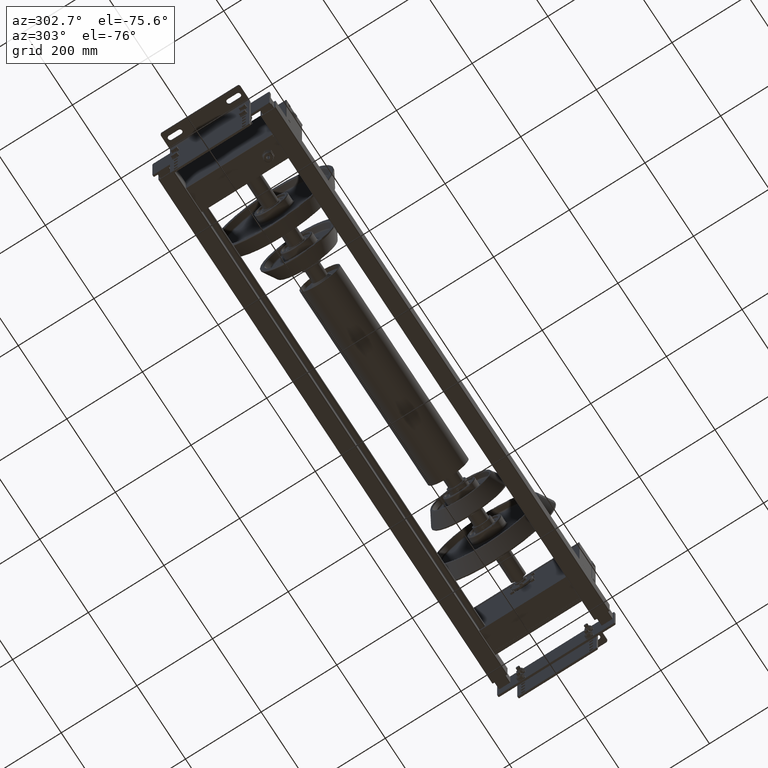
[diagram: clean part render]
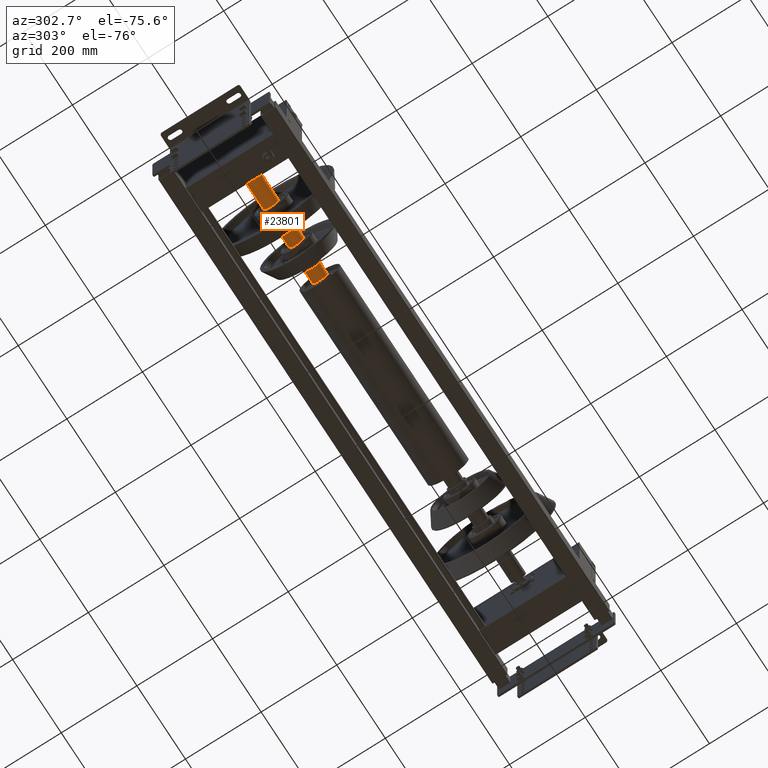
[diagram: same view with one face highlighted and labeled with its STEP entity id]
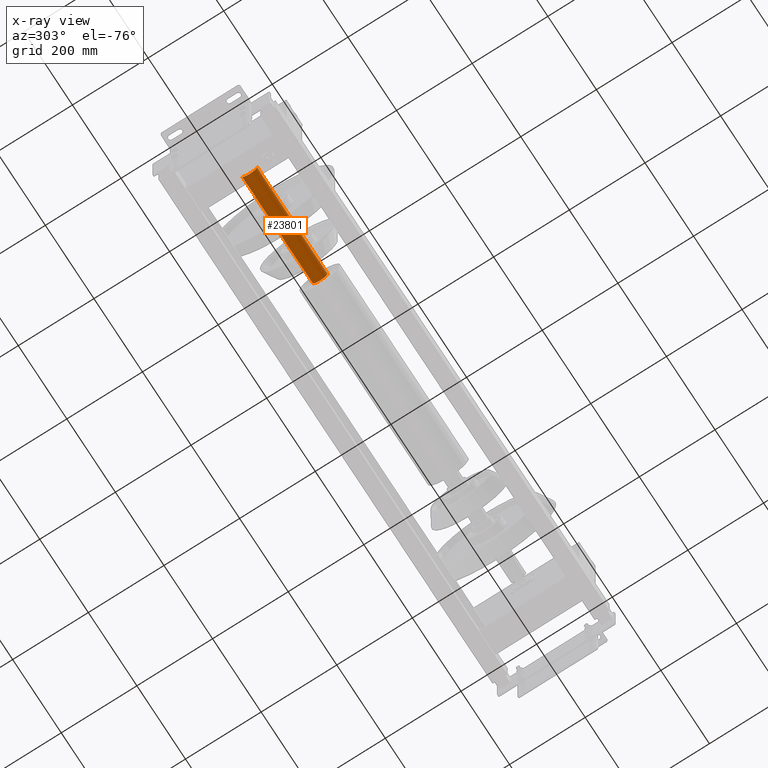
[diagram: x-ray of the same camera — body ghosted, the highlighted face saturated]
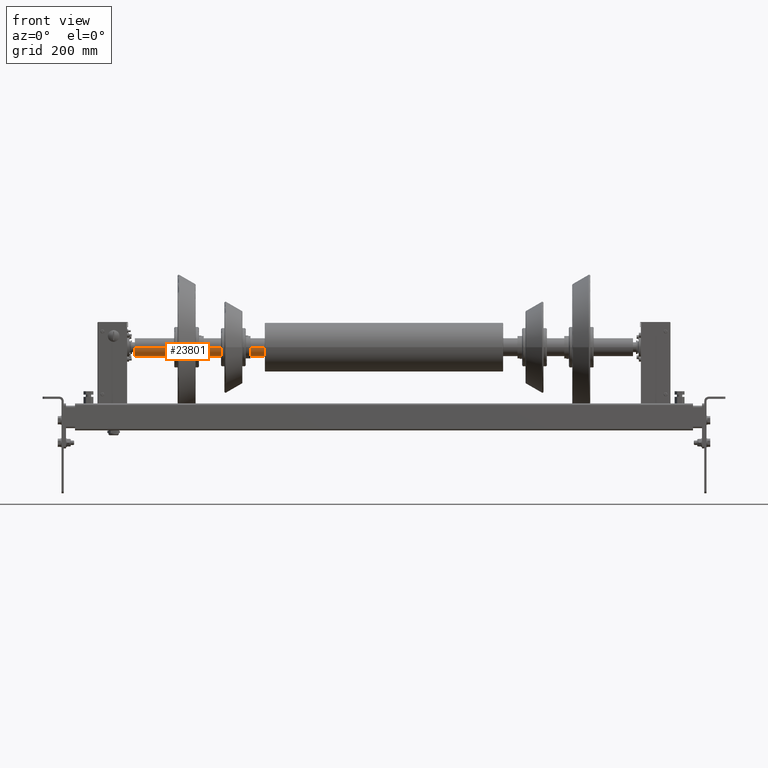
[diagram: same view with one face highlighted and labeled with its STEP entity id]
A machine part, auxiliary view. The second image highlights one B-rep face of the part: STEP entity #23801.
The next image is the same camera in x-ray: the body ghosted, the highlighted face saturated — about 0% of this face is hidden behind the body in this view.
A second angle (front view) of the same face is appended — the face is thin or edge-on in the first view.
In plain terms, the highlighted cylindrical surface (edge-blend (fillet) strip) has radius 20 mm, axis along (1, 0, 0).
Its self-contained STEP definition (entity closure, byte-faithful):
#23735=CARTESIAN_POINT('',(187.014718629999980,20.0,0.0));
#23736=VERTEX_POINT('',#23735);
#23752=CARTESIAN_POINT('',(187.014718630000000,-20.0,-2.449294E-015));
#23753=VERTEX_POINT('',#23752);
#23760=CARTESIAN_POINT('',(187.014718630000000,0.0,0.0));
#23761=DIRECTION('',(1.0,0.0,0.0));
#23762=DIRECTION('',(0.0,1.0,0.0));
#23763=AXIS2_PLACEMENT_3D('',#23760,#23761,#23762);
#23764=CIRCLE('',#23763,20.0);
#23765=EDGE_CURVE('',#23753,#23736,#23764,.T.);
#23770=CARTESIAN_POINT('',(41.757359314999974,0.0,0.0));
#23771=DIRECTION('',(1.0,0.0,0.0));
#23772=DIRECTION('',(0.0,1.0,0.0));
#23773=AXIS2_PLACEMENT_3D('',#23770,#23771,#23772);
#23774=CYLINDRICAL_SURFACE('',#23773,20.0);
#23775=CARTESIAN_POINT('',(-103.500000000000030,20.0,0.0));
#23776=VERTEX_POINT('',#23775);
#23777=CARTESIAN_POINT('',(187.014718629999980,20.0,0.0));
#23778=DIRECTION('',(-1.0,0.0,0.0));
#23779=VECTOR('',#23778,290.514718630000000);
#23780=LINE('',#23777,#23779);
#23781=EDGE_CURVE('',#23736,#23776,#23780,.T.);
#23782=ORIENTED_EDGE('',*,*,#23781,.F.);
#23783=ORIENTED_EDGE('',*,*,#23765,.F.);
#23784=CARTESIAN_POINT('',(-103.500000000000030,-20.0,-2.449294E-015));
#23785=VERTEX_POINT('',#23784);
#23786=CARTESIAN_POINT('',(187.014718630000000,-20.0,-2.449294E-015));
#23787=DIRECTION('',(-1.0,0.0,0.0));
#23788=VECTOR('',#23787,290.514718630000060);
#23789=LINE('',#23786,#23788);
#23790=EDGE_CURVE('',#23753,#23785,#23789,.T.);
#23791=ORIENTED_EDGE('',*,*,#23790,.T.);
#23792=CARTESIAN_POINT('',(-103.500000000000030,0.0,0.0));
#23793=DIRECTION('',(1.0,0.0,0.0));
#23794=DIRECTION('',(0.0,1.0,0.0));
#23795=AXIS2_PLACEMENT_3D('',#23792,#23793,#23794);
#23796=CIRCLE('',#23795,20.0);
#23797=EDGE_CURVE('',#23785,#23776,#23796,.T.);
#23798=ORIENTED_EDGE('',*,*,#23797,.T.);
#23799=EDGE_LOOP('',(#23782,#23783,#23791,#23798));
#23800=FACE_OUTER_BOUND('',#23799,.T.);
#23801=ADVANCED_FACE('',(#23800),#23774,.T.);